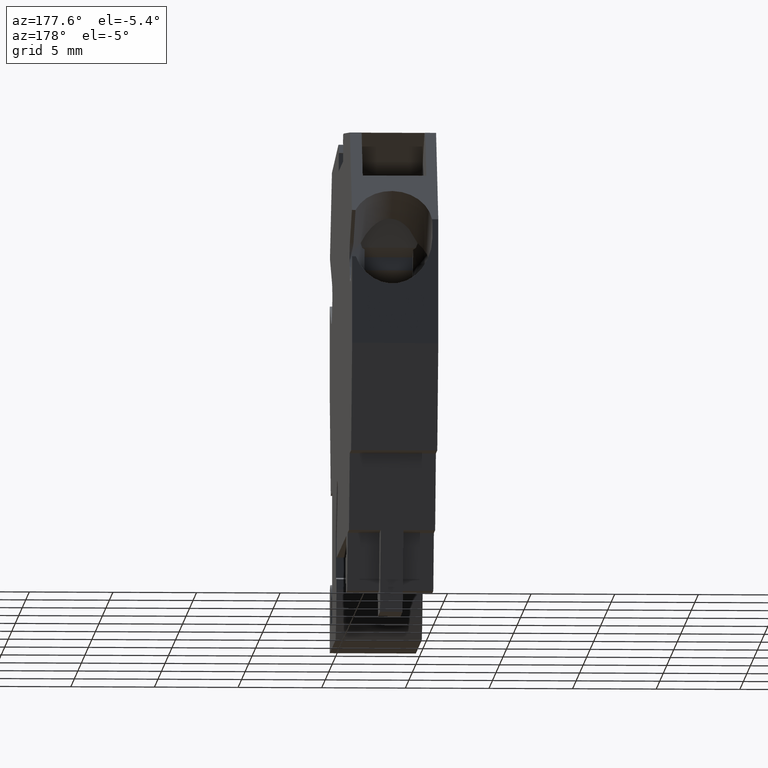
[diagram: clean part render]
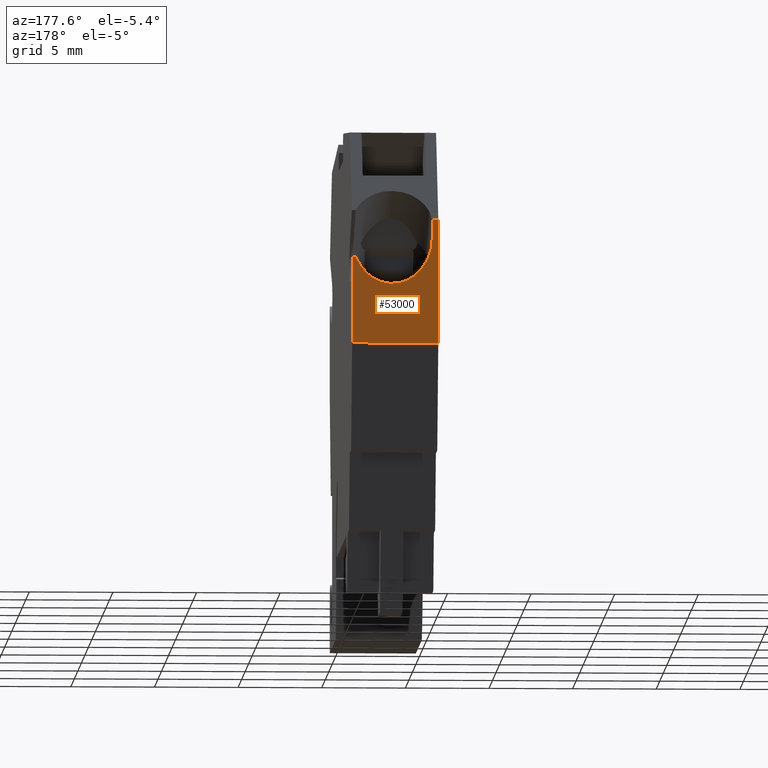
[diagram: same view with one face highlighted and labeled with its STEP entity id]
A machine part, auxiliary view. The second image highlights one B-rep face of the part: STEP entity #53000.
In plain terms, the highlighted planar face has unit normal (0, -1, -0).
Its self-contained STEP definition (entity closure, byte-faithful):
#2570=CARTESIAN_POINT('',(63.845295919222,107.066426325094,
4.74999999999985));
#2580=VERTEX_POINT('',#2570);
#2610=CARTESIAN_POINT('',(79.6226566744922,97.9573628459351,
4.74999999999944));
#2620=DIRECTION('',(0.86602540378414,-0.500000000000517,
-2.228772721935E-14));
#2630=VECTOR('',#2620,1.);
#2640=LINE('',#2610,#2630);
#2650=CARTESIAN_POINT('',(68.3415772113182,104.470497110757,
4.74999999999973));
#2660=VERTEX_POINT('',#2650);
#2670=EDGE_CURVE('',#2580,#2660,#2640,.T.);
#9460=CARTESIAN_POINT('',(68.3415772113182,104.470497110757,9.9));
#9470=VERTEX_POINT('',#9460);
#9500=CARTESIAN_POINT('',(79.6226566744922,97.957362845935,9.9));
#9510=DIRECTION('',(-0.86602540378414,0.500000000000517,
-1.77767588142919E-48));
#9520=VECTOR('',#9510,1.);
#9530=LINE('',#9500,#9520);
#9540=CARTESIAN_POINT('',(61.9035663599316,108.187484408856,9.9));
#9550=VERTEX_POINT('',#9540);
#9560=EDGE_CURVE('',#9470,#9550,#9530,.T.);
#38980=CARTESIAN_POINT('',(61.9035663599316,108.187484408856,
-0.100000000000001));
#38990=DIRECTION('',(-1.67982988908085E-18,-3.44715267975821E-18,1.));
#39000=VECTOR('',#38990,1.);
#39010=LINE('',#38980,#39000);
#39020=CARTESIAN_POINT('',(61.9035663599213,108.187484408873,
9.5255464441432));
#39030=VERTEX_POINT('',#39020);
#39040=EDGE_CURVE('',#39030,#9550,#39010,.T.);
#39460=CARTESIAN_POINT('',(62.2452959192316,107.990186755804,
7.14999999999882));
#39470=DIRECTION('',(0.500000000000517,0.86602540378414,
3.82523673593448E-18));
#39480=DIRECTION('',(0.86602540378414,-0.500000000000517,
5.37698657557926E-13));
#39490=AXIS2_PLACEMENT_3D('',#39460,#39470,#39480);
#39500=ELLIPSE('',#39490,2.77128129211104,2.4);
#39510=CARTESIAN_POINT('',(62.245295919227,107.990186755806,
9.54999999999882));
#39520=VERTEX_POINT('',#39510);
#39530=EDGE_CURVE('',#39030,#39520,#39500,.T.);
#50390=CARTESIAN_POINT('',(63.8452959192272,107.066426325102,
4.96825757706988));
#50400=VERTEX_POINT('',#50390);
#51320=CARTESIAN_POINT('',(62.8452959192297,107.643776594291,
9.54999999999883));
#51330=VERTEX_POINT('',#51320);
#51360=CARTESIAN_POINT('',(62.8452959192316,107.64377659429,
7.14999999999883));
#51370=DIRECTION('',(0.500000000000517,0.86602540378414,
3.82523673593448E-18));
#51380=DIRECTION('',(0.86602540378414,-0.500000000000517,
5.37698657557926E-13));
#51390=AXIS2_PLACEMENT_3D('',#51360,#51370,#51380);
#51400=ELLIPSE('',#51390,2.77128129211104,2.4);
#51410=EDGE_CURVE('',#51330,#50400,#51400,.T.);
#51580=CARTESIAN_POINT('',(79.6226566744922,97.9573628459351,
9.54999999999902));
#51590=DIRECTION('',(-0.86602540378414,0.500000000000517,
-9.6034291630076E-15));
#51600=VECTOR('',#51590,1.);
#51610=LINE('',#51580,#51600);
#51620=EDGE_CURVE('',#51330,#39520,#51610,.T.);
#52050=CARTESIAN_POINT('',(63.8452959192305,107.0664263251,
-0.100000000000001));
#52060=DIRECTION('',(1.44066380778753E-13,-8.31811807268211E-14,1.));
#52070=VECTOR('',#52060,1.);
#52080=LINE('',#52050,#52070);
#52090=EDGE_CURVE('',#2580,#50400,#52080,.T.);
#52800=CARTESIAN_POINT('',(66.5989846266028,105.476583408632,
5.70000000000001));
#52810=DIRECTION('',(0.500000000000517,0.86602540378414,
3.82523673593448E-18));
#52820=DIRECTION('',(0.866025403784141,-0.500000000000517,
-2.68800981900973E-19));
#52830=AXIS2_PLACEMENT_3D('',#52800,#52810,#52820);
#52840=PLANE('',#52830);
#52850=ORIENTED_EDGE('',*,*,#9560,.T.);
#52860=CARTESIAN_POINT('',(68.3415772113181,104.470497110757,
-0.0999999999999974));
#52870=DIRECTION('',(-9.08717145964307E-18,8.29477969991289E-19,1.));
#52880=VECTOR('',#52870,1.);
#52890=LINE('',#52860,#52880);
#52900=EDGE_CURVE('',#2660,#9470,#52890,.T.);
#52910=ORIENTED_EDGE('',*,*,#52900,.T.);
#52920=ORIENTED_EDGE('',*,*,#2670,.T.);
#52930=ORIENTED_EDGE('',*,*,#52090,.F.);
#52940=ORIENTED_EDGE('',*,*,#51410,.T.);
#52950=ORIENTED_EDGE('',*,*,#51620,.F.);
#52960=ORIENTED_EDGE('',*,*,#39530,.T.);
#52970=ORIENTED_EDGE('',*,*,#39040,.F.);
#52980=EDGE_LOOP('',(#52970,#52960,#52950,#52940,#52930,#52920,#52910,
#52850));
#52990=FACE_OUTER_BOUND('',#52980,.T.);
#53000=ADVANCED_FACE('',(#52990),#52840,.F.);